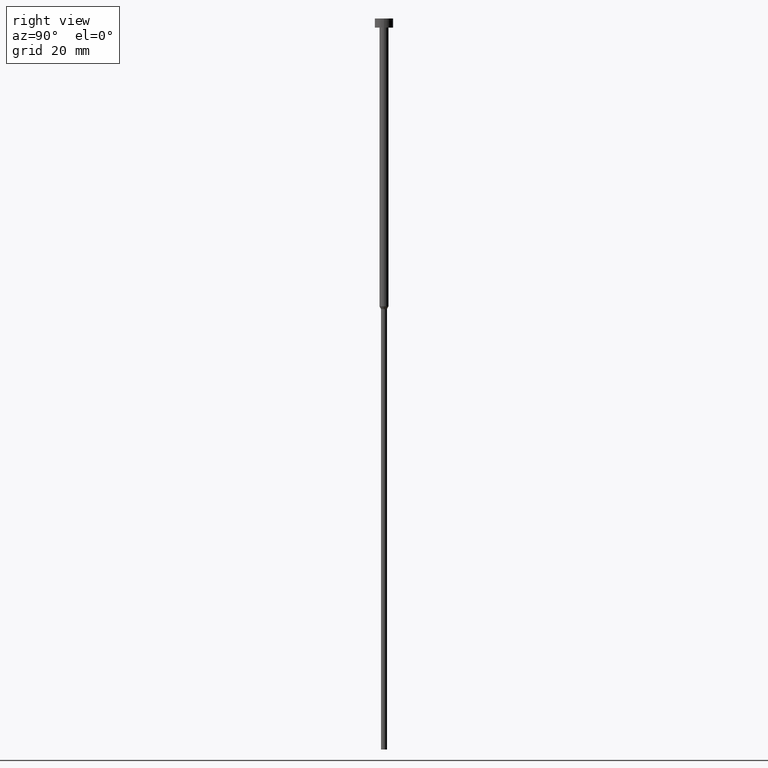
[diagram: clean part render]
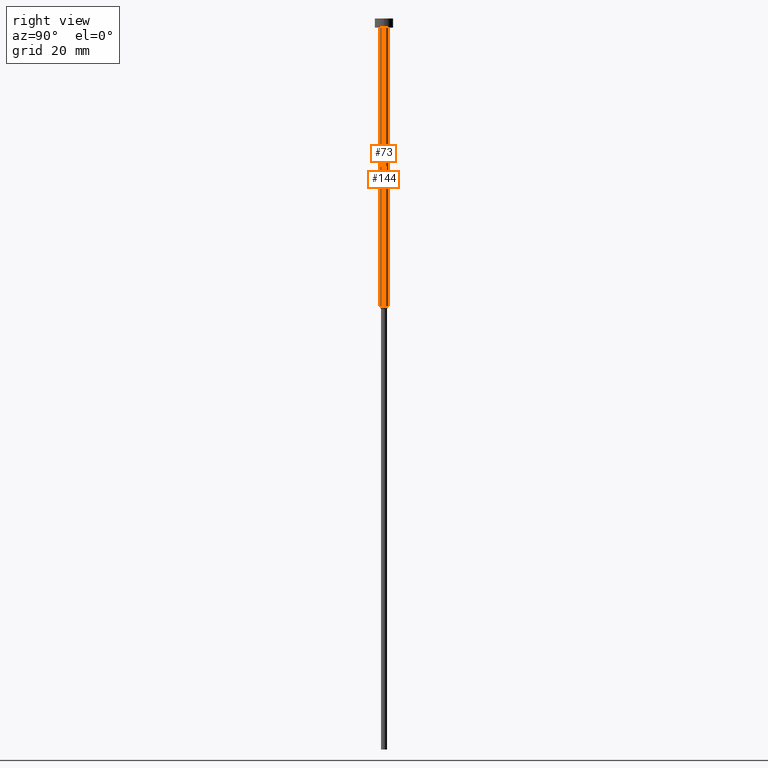
[diagram: same view with one multi-face feature highlighted, each face labeled with its STEP entity id]
A machine part, right view. The highlighted faces form ONE feature: a constant-radius fillet chain: 2 tangent blend faces with common blend radius 1 mm. The faces share edges in the B-rep.
Their STEP definitions:
[1] entity #144 (Cylinder):
#21 = ORIENTED_EDGE ( 'NONE', *, *, #89, .T. ) ;
#29 = AXIS2_PLACEMENT_3D ( 'NONE', #94, #173, #251 ) ;
#41 = EDGE_CURVE ( 'NONE', #100, #242, #210, .T. ) ;
#61 = CARTESIAN_POINT ( 'NONE',  ( 0.000000000000000000, 0.000000000000000000, 0.000000000000000000 ) ) ;
#63 = CARTESIAN_POINT ( 'NONE',  ( 0.000000000000000000, 0.000000000000000000, -63.00000000000000000 ) ) ;
#68 = LINE ( 'NONE', #340, #70 ) ;
#70 = VECTOR ( 'NONE', #233, 1000.000000000000000 ) ;
#86 = LINE ( 'NONE', #170, #93 ) ;
#89 = EDGE_CURVE ( 'NONE', #188, #334, #283, .T. ) ;
#90 = DIRECTION ( 'NONE',  ( -0.000000000000000000, -0.000000000000000000, 1.000000000000000000 ) ) ;
#93 = VECTOR ( 'NONE', #194, 1000.000000000000000 ) ;
#94 = CARTESIAN_POINT ( 'NONE',  ( 0.000000000000000000, 0.000000000000000000, -2.000000000000000444 ) ) ;
#100 = VERTEX_POINT ( 'NONE', #199 ) ;
#105 = ORIENTED_EDGE ( 'NONE', *, *, #114, .T. ) ;
#108 = EDGE_CURVE ( 'NONE', #188, #100, #68, .T. ) ;
#114 = EDGE_CURVE ( 'NONE', #334, #242, #86, .T. ) ;
#121 = DIRECTION ( 'NONE',  ( -0.000000000000000000, -0.000000000000000000, 1.000000000000000000 ) ) ;
#140 = CYLINDRICAL_SURFACE ( 'NONE', #301, 1.000000000000003331 ) ;
#144 = ADVANCED_FACE ( 'NONE', ( #309 ), #140, .T. ) ;
#152 = EDGE_LOOP ( 'NONE', ( #21, #105, #191, #219 ) ) ;
#170 = CARTESIAN_POINT ( 'NONE',  ( -1.000000000000003331, 1.224646799147357151E-16, 0.000000000000000000 ) ) ;
#173 = DIRECTION ( 'NONE',  ( -0.000000000000000000, -0.000000000000000000, 1.000000000000000000 ) ) ;
#184 = CARTESIAN_POINT ( 'NONE',  ( -1.000000000000003109, 1.224646799147356905E-16, -63.00000000000000000 ) ) ;
#188 = VERTEX_POINT ( 'NONE', #338 ) ;
#191 = ORIENTED_EDGE ( 'NONE', *, *, #41, .F. ) ;
#194 = DIRECTION ( 'NONE',  ( -0.000000000000000000, -0.000000000000000000, 1.000000000000000000 ) ) ;
#199 = CARTESIAN_POINT ( 'NONE',  ( 1.000000000000003553, 0.000000000000000000, -2.000000000000000444 ) ) ;
#210 = CIRCLE ( 'NONE', #29, 1.000000000000003553 ) ;
#219 = ORIENTED_EDGE ( 'NONE', *, *, #108, .F. ) ;
#233 = DIRECTION ( 'NONE',  ( -0.000000000000000000, -0.000000000000000000, 1.000000000000000000 ) ) ;
#235 = CARTESIAN_POINT ( 'NONE',  ( -1.000000000000003553, 1.224646799147357398E-16, -2.000000000000000444 ) ) ;
#242 = VERTEX_POINT ( 'NONE', #235 ) ;
#251 = DIRECTION ( 'NONE',  ( 1.000000000000000000, 0.000000000000000000, 0.000000000000000000 ) ) ;
#283 = CIRCLE ( 'NONE', #335, 1.000000000000003109 ) ;
#301 = AXIS2_PLACEMENT_3D ( 'NONE', #61, #90, #315 ) ;
#309 = FACE_OUTER_BOUND ( 'NONE', #152, .T. ) ;
#315 = DIRECTION ( 'NONE',  ( 1.000000000000000000, 0.000000000000000000, 0.000000000000000000 ) ) ;
#316 = DIRECTION ( 'NONE',  ( 1.000000000000000000, 0.000000000000000000, 0.000000000000000000 ) ) ;
#334 = VERTEX_POINT ( 'NONE', #184 ) ;
#335 = AXIS2_PLACEMENT_3D ( 'NONE', #63, #121, #316 ) ;
#338 = CARTESIAN_POINT ( 'NONE',  ( 1.000000000000003109, 0.000000000000000000, -63.00000000000000000 ) ) ;
#340 = CARTESIAN_POINT ( 'NONE',  ( 1.000000000000003331, 0.000000000000000000, 0.000000000000000000 ) ) ;
[2] entity #73 (Cylinder):
#6 = DIRECTION ( 'NONE',  ( -0.000000000000000000, -0.000000000000000000, 1.000000000000000000 ) ) ;
#8 = CYLINDRICAL_SURFACE ( 'NONE', #47, 1.000000000000003331 ) ;
#19 = CIRCLE ( 'NONE', #225, 1.000000000000003553 ) ;
#35 = DIRECTION ( 'NONE',  ( -0.000000000000000000, -0.000000000000000000, 1.000000000000000000 ) ) ;
#47 = AXIS2_PLACEMENT_3D ( 'NONE', #254, #6, #341 ) ;
#57 = ORIENTED_EDGE ( 'NONE', *, *, #108, .T. ) ;
#58 = ORIENTED_EDGE ( 'NONE', *, *, #96, .F. ) ;
#68 = LINE ( 'NONE', #340, #70 ) ;
#70 = VECTOR ( 'NONE', #233, 1000.000000000000000 ) ;
#73 = ADVANCED_FACE ( 'NONE', ( #146 ), #8, .T. ) ;
#86 = LINE ( 'NONE', #170, #93 ) ;
#93 = VECTOR ( 'NONE', #194, 1000.000000000000000 ) ;
#96 = EDGE_CURVE ( 'NONE', #242, #100, #19, .T. ) ;
#100 = VERTEX_POINT ( 'NONE', #199 ) ;
#108 = EDGE_CURVE ( 'NONE', #188, #100, #68, .T. ) ;
#113 = DIRECTION ( 'NONE',  ( -0.000000000000000000, -0.000000000000000000, 1.000000000000000000 ) ) ;
#114 = EDGE_CURVE ( 'NONE', #334, #242, #86, .T. ) ;
#119 = CARTESIAN_POINT ( 'NONE',  ( 0.000000000000000000, 0.000000000000000000, -2.000000000000000444 ) ) ;
#146 = FACE_OUTER_BOUND ( 'NONE', #355, .T. ) ;
#158 = EDGE_CURVE ( 'NONE', #334, #188, #344, .T. ) ;
#170 = CARTESIAN_POINT ( 'NONE',  ( -1.000000000000003331, 1.224646799147357151E-16, 0.000000000000000000 ) ) ;
#184 = CARTESIAN_POINT ( 'NONE',  ( -1.000000000000003109, 1.224646799147356905E-16, -63.00000000000000000 ) ) ;
#185 = ORIENTED_EDGE ( 'NONE', *, *, #158, .T. ) ;
#188 = VERTEX_POINT ( 'NONE', #338 ) ;
#194 = DIRECTION ( 'NONE',  ( -0.000000000000000000, -0.000000000000000000, 1.000000000000000000 ) ) ;
#197 = CARTESIAN_POINT ( 'NONE',  ( 0.000000000000000000, 0.000000000000000000, -63.00000000000000000 ) ) ;
#199 = CARTESIAN_POINT ( 'NONE',  ( 1.000000000000003553, 0.000000000000000000, -2.000000000000000444 ) ) ;
#225 = AXIS2_PLACEMENT_3D ( 'NONE', #119, #113, #278 ) ;
#233 = DIRECTION ( 'NONE',  ( -0.000000000000000000, -0.000000000000000000, 1.000000000000000000 ) ) ;
#235 = CARTESIAN_POINT ( 'NONE',  ( -1.000000000000003553, 1.224646799147357398E-16, -2.000000000000000444 ) ) ;
#242 = VERTEX_POINT ( 'NONE', #235 ) ;
#254 = CARTESIAN_POINT ( 'NONE',  ( 0.000000000000000000, 0.000000000000000000, 0.000000000000000000 ) ) ;
#278 = DIRECTION ( 'NONE',  ( 1.000000000000000000, 0.000000000000000000, 0.000000000000000000 ) ) ;
#327 = ORIENTED_EDGE ( 'NONE', *, *, #114, .F. ) ;
#334 = VERTEX_POINT ( 'NONE', #184 ) ;
#336 = DIRECTION ( 'NONE',  ( 1.000000000000000000, 0.000000000000000000, 0.000000000000000000 ) ) ;
#338 = CARTESIAN_POINT ( 'NONE',  ( 1.000000000000003109, 0.000000000000000000, -63.00000000000000000 ) ) ;
#340 = CARTESIAN_POINT ( 'NONE',  ( 1.000000000000003331, 0.000000000000000000, 0.000000000000000000 ) ) ;
#341 = DIRECTION ( 'NONE',  ( 1.000000000000000000, 0.000000000000000000, 0.000000000000000000 ) ) ;
#342 = AXIS2_PLACEMENT_3D ( 'NONE', #197, #35, #336 ) ;
#344 = CIRCLE ( 'NONE', #342, 1.000000000000003109 ) ;
#355 = EDGE_LOOP ( 'NONE', ( #327, #185, #57, #58 ) ) ;